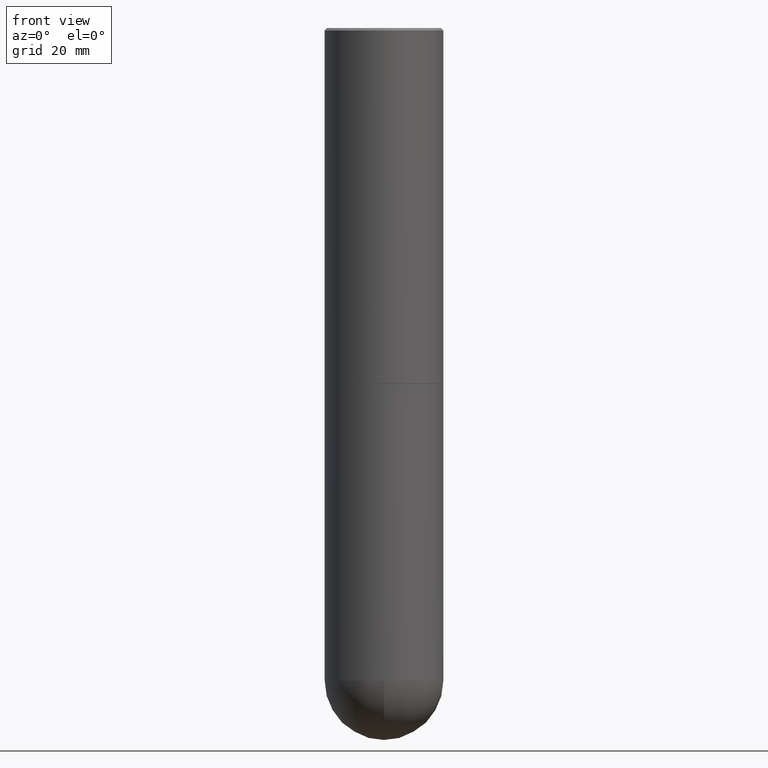
[diagram: clean part render]
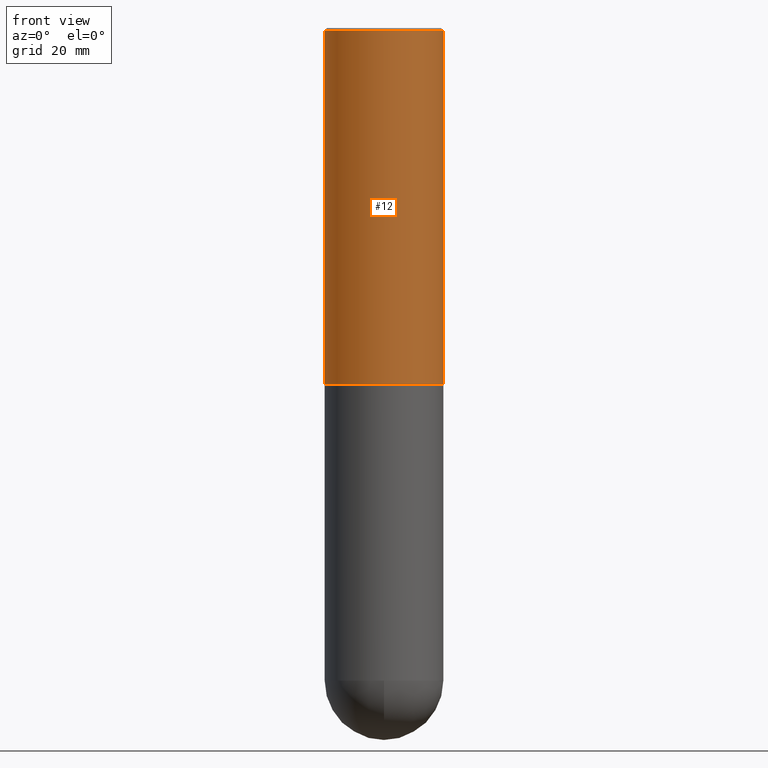
[diagram: same view with one face highlighted and labeled with its STEP entity id]
A machine part, front view. The second image highlights one B-rep face of the part: STEP entity #12.
In plain terms, the highlighted cylindrical surface (partial cylindrical patch) has radius 12.5006 mm, axis along (-0, 0, 1).
Its self-contained STEP definition (entity closure, byte-faithful):
#1 = CARTESIAN_POINT ( 'NONE',  ( 4.890937612370299433E-31, -6.982962677686328587E-17, -0.02000000000000010797 ) ) ;
#8 = ORIENTED_EDGE ( 'NONE', *, *, #233, .F. ) ;
#10 = DIRECTION ( 'NONE',  ( -2.445468806185136877E-29, 3.491481338843145188E-15, 1.000000000000000000 ) ) ;
#12 = ADVANCED_FACE ( 'NONE', ( #30 ), #193, .T. ) ;
#24 = VERTEX_POINT ( 'NONE', #367 ) ;
#30 = FACE_OUTER_BOUND ( 'NONE', #154, .T. ) ;
#54 = ORIENTED_EDGE ( 'NONE', *, *, #375, .T. ) ;
#57 = DIRECTION ( 'NONE',  ( 1.000000000000000000, -6.982962677686266711E-15, 4.876176775795935232E-29 ) ) ;
#89 = VERTEX_POINT ( 'NONE', #283 ) ;
#92 = DIRECTION ( 'NONE',  ( -2.445468806185136877E-29, 3.491481338843145188E-15, 1.000000000000000000 ) ) ;
#125 = CARTESIAN_POINT ( 'NONE',  ( -0.4921500000000001984, 3.496936074043334475E-15, -2.420853904668952630E-29 ) ) ;
#126 = ORIENTED_EDGE ( 'NONE', *, *, #318, .T. ) ;
#139 = CARTESIAN_POINT ( 'NONE',  ( 7.218290275216666916E-29, -1.030580546786331359E-14, -2.951700000000000212 ) ) ;
#148 = VECTOR ( 'NONE', #92, 39.37007874015748143 ) ;
#154 = EDGE_LOOP ( 'NONE', ( #8, #54, #126, #355 ) ) ;
#158 = CARTESIAN_POINT ( 'NONE',  ( -0.4921500000000003094, -1.690881473276752982E-15, -2.951700000000000212 ) ) ;
#161 = DIRECTION ( 'NONE',  ( -2.445468806185136597E-29, 3.491481338843145583E-15, 1.000000000000000000 ) ) ;
#171 = DIRECTION ( 'NONE',  ( -2.445468806185136597E-29, 3.491481338843145583E-15, 1.000000000000000000 ) ) ;
#179 = LINE ( 'NONE', #306, #223 ) ;
#193 = CYLINDRICAL_SURFACE ( 'NONE', #395, 0.4921500000000001984 ) ;
#198 = VERTEX_POINT ( 'NONE', #158 ) ;
#207 = LINE ( 'NONE', #125, #148 ) ;
#223 = VECTOR ( 'NONE', #10, 39.37007874015748143 ) ;
#233 = EDGE_CURVE ( 'NONE', #198, #89, #207, .T. ) ;
#242 = DIRECTION ( 'NONE',  ( 1.000000000000000000, -6.982962677686265922E-15, 0.000000000000000000 ) ) ;
#254 = CARTESIAN_POINT ( 'NONE',  ( 0.000000000000000000, 0.000000000000000000, 0.000000000000000000 ) ) ;
#282 = EDGE_CURVE ( 'NONE', #89, #303, #363, .T. ) ;
#283 = CARTESIAN_POINT ( 'NONE',  ( -0.4921500000000000319, 3.366835455046432873E-15, -0.02000000000000010797 ) ) ;
#292 = AXIS2_PLACEMENT_3D ( 'NONE', #139, #161, #406 ) ;
#303 = VERTEX_POINT ( 'NONE', #376 ) ;
#306 = CARTESIAN_POINT ( 'NONE',  ( 0.4921500000000001984, -3.436665081823297354E-15, 2.399810400207970443E-29 ) ) ;
#318 = EDGE_CURVE ( 'NONE', #24, #303, #179, .T. ) ;
#339 = DIRECTION ( 'NONE',  ( -2.445468806185136597E-29, 3.491481338843145583E-15, 1.000000000000000000 ) ) ;
#355 = ORIENTED_EDGE ( 'NONE', *, *, #282, .F. ) ;
#360 = CIRCLE ( 'NONE', #292, 0.4921500000000003094 ) ;
#363 = CIRCLE ( 'NONE', #403, 0.4921500000000000319 ) ;
#367 = CARTESIAN_POINT ( 'NONE',  ( 0.4921500000000003094, -1.374247054968661252E-14, -2.951700000000000212 ) ) ;
#375 = EDGE_CURVE ( 'NONE', #198, #24, #360, .T. ) ;
#376 = CARTESIAN_POINT ( 'NONE',  ( 0.4921500000000000319, -3.446223716380123138E-15, -0.02000000000000010797 ) ) ;
#395 = AXIS2_PLACEMENT_3D ( 'NONE', #254, #339, #57 ) ;
#403 = AXIS2_PLACEMENT_3D ( 'NONE', #1, #171, #242 ) ;
#406 = DIRECTION ( 'NONE',  ( 1.000000000000000000, -6.982962677686265922E-15, 0.000000000000000000 ) ) ;